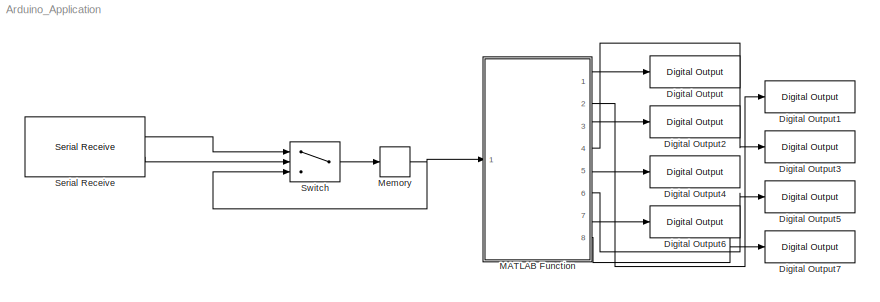
MODEL Arduino_Application
KIND model
BLOCK [Reference] Digital Output  REF=arduinolib/Digital Output
  Ports = [1]
  SID = 9
  SourceBlock = arduinolib/Digital Output
  SourceType = Arduino Digital Output
  pinNumber = 53
BLOCK [Reference] Digital Output1  REF=arduinolib/Digital Output
  Ports = [1]
  SID = 10
  SourceBlock = arduinolib/Digital Output
  SourceType = Arduino Digital Output
  pinNumber = 51
BLOCK [Reference] Digital Output2  REF=arduinolib/Digital Output
  Ports = [1]
  SID = 11
  SourceBlock = arduinolib/Digital Output
  SourceType = Arduino Digital Output
  pinNumber = 49
BLOCK [Reference] Digital Output3  REF=arduinolib/Digital Output
  Ports = [1]
  SID = 12
  SourceBlock = arduinolib/Digital Output
  SourceType = Arduino Digital Output
  pinNumber = 47
BLOCK [Reference] Digital Output4  REF=arduinolib/Digital Output
  Ports = [1]
  SID = 13
  SourceBlock = arduinolib/Digital Output
  SourceType = Arduino Digital Output
  pinNumber = 45
BLOCK [Reference] Digital Output5  REF=arduinolib/Digital Output
  Ports = [1]
  SID = 14
  SourceBlock = arduinolib/Digital Output
  SourceType = Arduino Digital Output
  pinNumber = 43
BLOCK [Reference] Digital Output6  REF=arduinolib/Digital Output
  Ports = [1]
  SID = 15
  SourceBlock = arduinolib/Digital Output
  SourceType = Arduino Digital Output
  pinNumber = 41
BLOCK [Reference] Digital Output7  REF=arduinolib/Digital Output
  Ports = [1]
  SID = 16
  SourceBlock = arduinolib/Digital Output
  SourceType = Arduino Digital Output
  pinNumber = 39
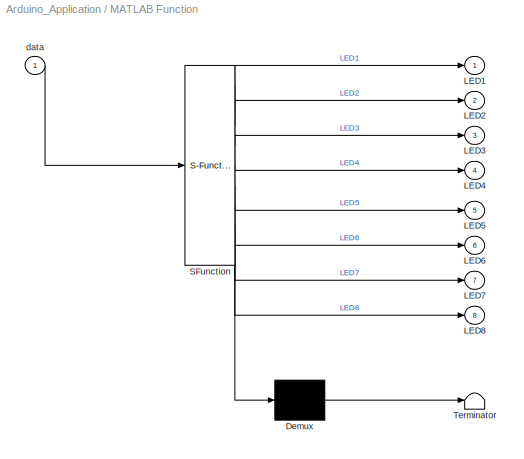
BLOCK [SubSystem] MATLAB Function
  ErrorFcn = Stateflow.Translate.translate
  PermitHierarchicalResolution = ExplicitOnly
  Ports = [1, 8]
  RequestExecContextInheritance = off
  SFBlockType = MATLAB Function
  SID = 8
  TreatAsAtomicUnit = on
BLOCK [Demux] MATLAB Function/ Demux 
  Outputs = 1
  Ports = [1, 1]
  SID = 8::19
BLOCK [S-Function] MATLAB Function/ SFunction 
  EnableBusSupport = on
  FunctionName = sf_sfun
  PortCounts = [1 9]
  Ports = [1, 9]
  SID = 8::18
  Tag = Stateflow S-Function Arduino_Application 2
BLOCK [Terminator] MATLAB Function/ Terminator 
  SID = 8::20
BLOCK [Outport] MATLAB Function/LED1
  IconDisplay = Port number
  SID = 8::5
BLOCK [Outport] MATLAB Function/LED2
  IconDisplay = Port number
  Port = 2
  SID = 8::21
BLOCK [Outport] MATLAB Function/LED3
  IconDisplay = Port number
  Port = 3
  SID = 8::22
BLOCK [Outport] MATLAB Function/LED4
  IconDisplay = Port number
  Port = 4
  SID = 8::23
BLOCK [Outport] MATLAB Function/LED5
  IconDisplay = Port number
  Port = 5
  SID = 8::24
BLOCK [Outport] MATLAB Function/LED6
  IconDisplay = Port number
  Port = 6
  SID = 8::25
BLOCK [Outport] MATLAB Function/LED7
  IconDisplay = Port number
  Port = 7
  SID = 8::26
BLOCK [Outport] MATLAB Function/LED8
  IconDisplay = Port number
  Port = 8
  SID = 8::27
BLOCK [Inport] MATLAB Function/data
  IconDisplay = Port number
  SID = 8::1
BLOCK [Memory] Memory
  SID = 7
BLOCK [Reference] Serial Receive  REF=arduinolib/Serial Receive
  Ports = [0, 2]
  SID = 1
  SourceBlock = arduinolib/Serial Receive
  SourceType = Arduino Serial Receive
  portNumber = 0
  sampleTime = 1
  showOutStatus = on
BLOCK [Switch] Switch
  Criteria = u2 ~= 0
  InputSameDT = off
  SID = 6
  SaturateOnIntegerOverflow = off
LINE MATLAB Function/ Demux :1 -> MATLAB Function/ Terminator :1
LINE MATLAB Function/ SFunction :1 -> MATLAB Function/ Demux :1
LINE MATLAB Function/ SFunction :2 -> MATLAB Function/LED1:1
LINE MATLAB Function/ SFunction :3 -> MATLAB Function/LED2:1
LINE MATLAB Function/ SFunction :4 -> MATLAB Function/LED3:1
LINE MATLAB Function/ SFunction :5 -> MATLAB Function/LED4:1
LINE MATLAB Function/ SFunction :6 -> MATLAB Function/LED5:1
LINE MATLAB Function/ SFunction :7 -> MATLAB Function/LED6:1
LINE MATLAB Function/ SFunction :8 -> MATLAB Function/LED7:1
LINE MATLAB Function/ SFunction :9 -> MATLAB Function/LED8:1
LINE MATLAB Function/data:1 -> MATLAB Function/ SFunction :1
LINE MATLAB Function:1 -> Digital Output:1
LINE MATLAB Function:2 -> Digital Output1:1
LINE MATLAB Function:3 -> Digital Output2:1
LINE MATLAB Function:4 -> Digital Output3:1
LINE MATLAB Function:5 -> Digital Output4:1
LINE MATLAB Function:6 -> Digital Output5:1
LINE MATLAB Function:7 -> Digital Output6:1
LINE MATLAB Function:8 -> Digital Output7:1
NET Memory:1 -> MATLAB Function:1, Switch:3
LINE Serial Receive:1 -> Switch:1
LINE Serial Receive:2 -> Switch:2
LINE Switch:1 -> Memory:1
note: NET lines group one-source signal fan-out (src -> all destinations, sorted); 1:1 wires keep LINE
CHART MATLAB Function states=1 transitions=1
  STATE_LABEL 'eML_blk_kernel()'
